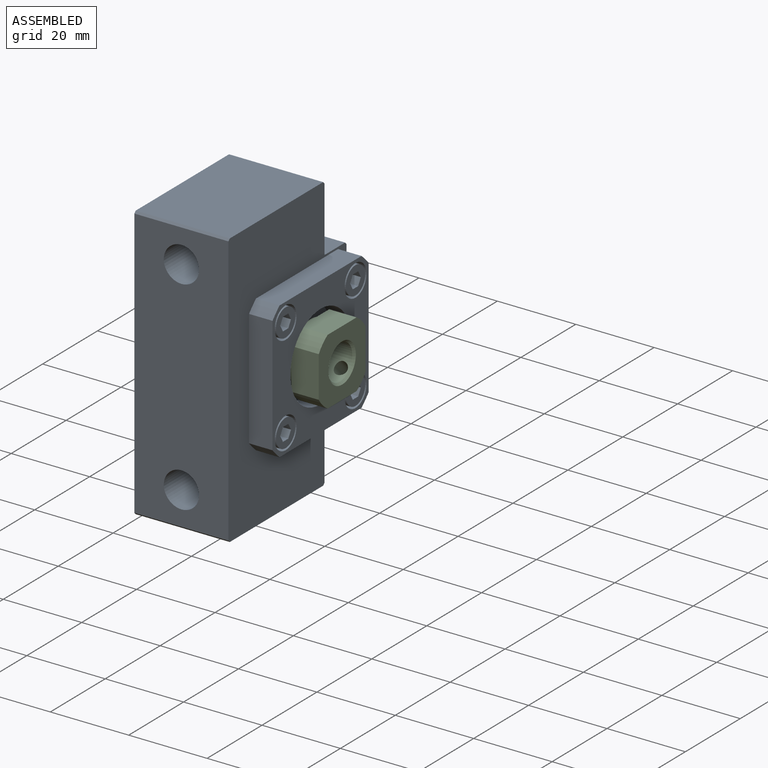
[diagram: assembled view]
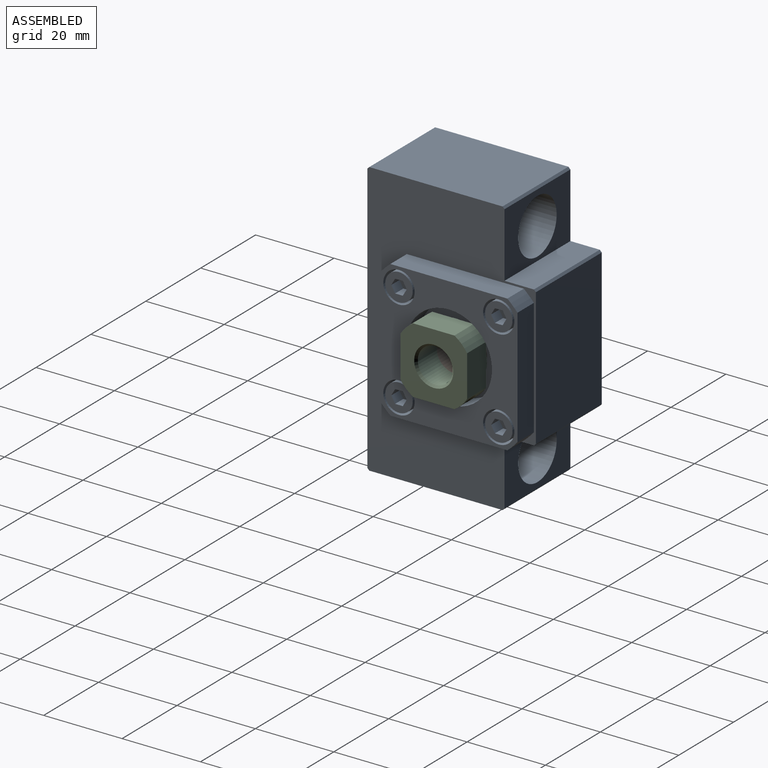
[diagram: assembled view, second angle]
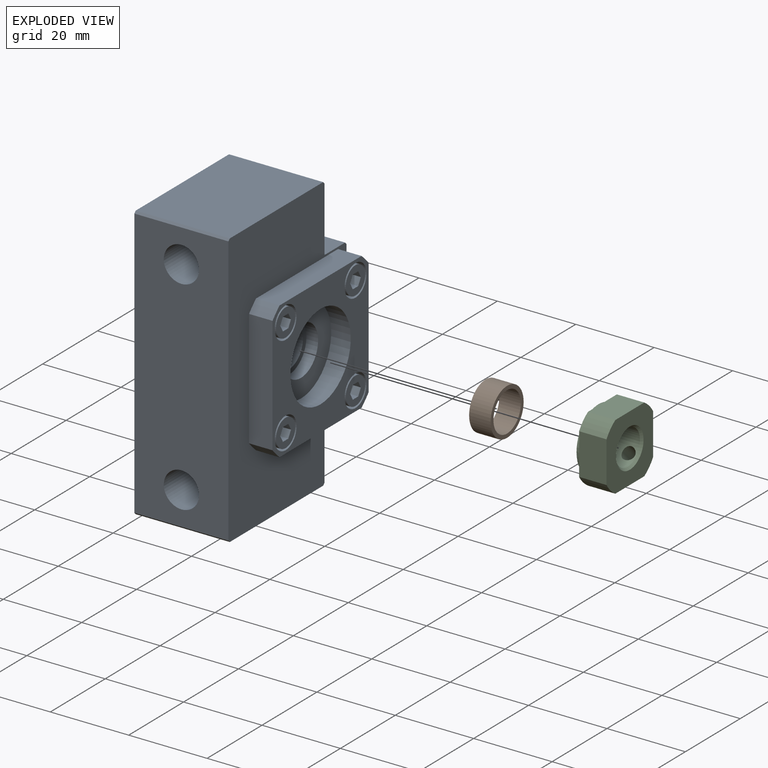
[diagram: exploded view]
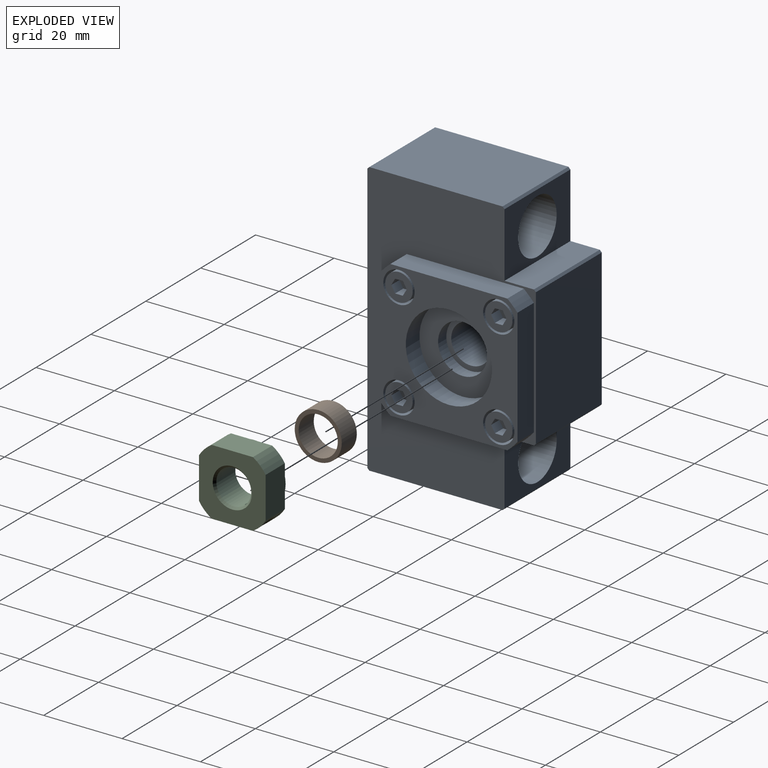
[diagram: exploded view, second angle]
ASSEMBLY  parts=3 mates=2
PART A: 84 faces, bbox 30x43x70 mm
  f0: plane 70x43mm, normal (-1,0,0), area 2390.9mm2, adj f3,f4,f5,f6,f7,f8,f9,f10
  f1: plane 35x35mm, normal (1,0,0), area 631.2mm2, adj f23,f24,f25,f26,f27,f28,f29,f30
  f2: plane 70x43mm, normal (1,0,0), area 1524.8mm2, adj f3,f4,f5,f6,f7,f8,f9,f10
  f3: plane 69x24mm, normal (0,-1,0), area 1528.8mm2, adj f0,f2,f7,f8,f19,f20
  f4: plane 24x16.5mm, normal (0,1,0), area 242.1mm2, adj f0,f2,f15,f16,f22
  f5: plane 24x16.5mm, normal (0,1,0), area 242.1mm2, adj f0,f2,f10,f11,f17
  f6: plane 34x24mm, normal (0,0,1), area 816mm2, adj f0,f2,f7,f16
  f7: plane 24x0.5mm, normal (0,-0.71,0.71), area 17mm2, adj f0,f2,f3,f6
  f8: plane 24x0.5mm, normal (0,-0.71,-0.71), area 17mm2, adj f0,f2,f3,f9
  f9: plane 34x24mm, normal (0,0,-1), area 816mm2, adj f0,f2,f8,f10
  f10: plane 24x0.5mm, normal (0,0.71,-0.71), area 17mm2, adj f0,f2,f5,f9
  f11: plane 24x7.5mm, normal (0,0,-1), area 180mm2, adj f0,f2,f5,f12
  f12: plane 24x0.5mm, normal (0,0.71,-0.71), area 17mm2, adj f0,f2,f11,f13
  f13: plane 35x24mm, normal (0,1,0), area 840mm2, adj f0,f2,f12,f14
  f14: plane 24x0.5mm, normal (0,0.71,0.71), area 17mm2, adj f0,f2,f13,f15
  f15: plane 24x7.5mm, normal (0,0,1), area 180mm2, adj f0,f2,f4,f14
  f16: plane 24x0.5mm, normal (0,0.71,0.71), area 17mm2, adj f0,f2,f4,f6
  f17: cylinder r=7mm len=14mm, axis (0,1,0), area 483.8mm2, adj f5,f18
  f18: plane 14x14mm, normal (0,1,0), area 90.3mm2, adj f17,f19
  f19: cylinder r=4.5mm len=24mm, axis (0,1,0), area 678.6mm2, adj f3,f18
  f20: cylinder r=4.5mm len=24mm, axis (0,-1,0), area 678.6mm2, adj f3,f21
  f21: plane 14x14mm, normal (0,1,0), area 90.3mm2, adj f20,f22
  f22: cylinder r=7mm len=14mm, axis (0,-1,0), area 483.8mm2, adj f4,f21
  f23: cylinder r=23mm len=6mm, axis (-1,0,0), area 21.9mm2, adj f1,f2,f24,f30
  f24: plane 29.85x6mm, normal (0,-1,0), area 179.1mm2, adj f1,f2,f23,f25
  f25: cylinder r=23mm len=6mm, axis (-1,0,0), area 21.9mm2, adj f1,f2,f24,f26
  f26: plane 29.85x6mm, normal (0,0,-1), area 179.1mm2, adj f1,f2,f25,f27
  f27: cylinder r=23mm len=6mm, axis (-1,0,0), area 21.9mm2, adj f1,f2,f26,f28
  f28: plane 29.85x6mm, normal (0,1,0), area 179.1mm2, adj f1,f2,f27,f29
  f29: cylinder r=23mm len=6mm, axis (-1,0,0), area 21.9mm2, adj f1,f2,f28,f30
  f30: plane 29.85x6mm, normal (0,0,1), area 179.1mm2, adj f1,f2,f23,f29
  f31: cylinder r=10.5mm len=21mm, axis (-1,0,0), area 197.9mm2, adj f0,f32
  f32: plane 21x21mm, normal (-1,0,0), area 223.6mm2, adj f31,f33
  f33: cylinder r=6.25mm len=12.5mm, axis (-1,0,0), area 117.8mm2, adj f32,f34
  f34: plane 12.5x12.5mm, normal (-1,0,0), area 44.2mm2, adj f33,f35
  f35: cylinder r=5mm len=16mm, axis (-1,0,0), area 502.7mm2, adj f34,f36
  f36: plane 12.5x12.5mm, normal (1,0,0), area 44.2mm2, adj f35,f37
  f37: cylinder r=6.25mm len=12.5mm, axis (-1,0,0), area 117.8mm2, adj f36,f38
  f38: plane 22x22mm, normal (1,0,0), area 257.4mm2, adj f37,f39
  f39: cylinder r=11mm len=22mm, axis (-1,0,0), area 345.6mm2, adj f1,f38
  f40: cylinder r=4mm len=8mm, axis (1,0,0), area 100.5mm2, adj f1,f41
  f41: plane 8x8mm, normal (1,0,0), area 11.8mm2, adj f40,f42
  f42: cylinder r=3.5mm len=7mm, axis (1,0,0), area 88mm2, adj f41,f43
  f43: plane 7x7mm, normal (1,0,0), area 28.5mm2, adj f42,f56,f57,f58,f59,f60,f61
  f44: cylinder r=4mm len=8mm, axis (1,0,0), area 100.5mm2, adj f1,f45
  f45: plane 8x8mm, normal (1,0,0), area 11.8mm2, adj f44,f46
  f46: cylinder r=3.5mm len=7mm, axis (1,0,0), area 88mm2, adj f45,f47
  f47: plane 7x7mm, normal (1,0,0), area 28.5mm2, adj f46,f63,f64,f65,f66,f67,f68
  f48: cylinder r=4mm len=8mm, axis (1,0,0), area 100.5mm2, adj f1,f49
  f49: plane 8x8mm, normal (1,0,0), area 11.8mm2, adj f48,f50
  f50: cylinder r=3.5mm len=7mm, axis (1,0,0), area 88mm2, adj f49,f51
  f51: plane 7x7mm, normal (1,0,0), area 28.5mm2, adj f50,f70,f71,f72,f73,f74,f75
  f52: cylinder r=4mm len=8mm, axis (1,0,0), area 100.5mm2, adj f1,f53
  f53: plane 8x8mm, normal (1,0,0), area 11.8mm2, adj f52,f54
  f54: cylinder r=3.5mm len=7mm, axis (1,0,0), area 88mm2, adj f53,f55
  f55: plane 7x7mm, normal (1,0,0), area 28.5mm2, adj f54,f77,f78,f79,f80,f81,f82
  f56: plane 3x1.7mm, normal (0,-0.87,-0.5), area 5.9mm2, adj f43,f57,f61,f62
  f57: plane 3x1.7mm, normal (0,-0.87,0.5), area 5.9mm2, adj f43,f56,f58,f62
  f58: plane 3x1.96mm, normal (0,0,1), area 5.9mm2, adj f43,f57,f59,f62
  f59: plane 3x1.7mm, normal (0,0.87,0.5), area 5.9mm2, adj f43,f58,f60,f62
  f60: plane 3x1.7mm, normal (0,0.87,-0.5), area 5.9mm2, adj f43,f59,f61,f62
  f61: plane 3x1.96mm, normal (0,0,-1), area 5.9mm2, adj f43,f56,f60,f62
  f62: plane 3.93x3.4mm, normal (1,0,0), area 10mm2, adj f56,f57,f58,f59,f60,f61
  f63: plane 3x1.7mm, normal (0,-0.87,-0.5), area 5.9mm2, adj f47,f64,f68,f69
  f64: plane 3x1.7mm, normal (0,-0.87,0.5), area 5.9mm2, adj f47,f63,f65,f69
  f65: plane 3x1.96mm, normal (0,0,1), area 5.9mm2, adj f47,f64,f66,f69
  f66: plane 3x1.7mm, normal (0,0.87,0.5), area 5.9mm2, adj f47,f65,f67,f69
  f67: plane 3x1.7mm, normal (0,0.87,-0.5), area 5.9mm2, adj f47,f66,f68,f69
  f68: plane 3x1.96mm, normal (0,0,-1), area 5.9mm2, adj f47,f63,f67,f69
  f69: plane 3.93x3.4mm, normal (1,0,0), area 10mm2, adj f63,f64,f65,f66,f67,f68
  f70: plane 3x1.7mm, normal (0,-0.87,-0.5), area 5.9mm2, adj f51,f71,f75,f76
  f71: plane 3x1.7mm, normal (0,-0.87,0.5), area 5.9mm2, adj f51,f70,f72,f76
  f72: plane 3x1.96mm, normal (0,0,1), area 5.9mm2, adj f51,f71,f73,f76
  f73: plane 3x1.7mm, normal (0,0.87,0.5), area 5.9mm2, adj f51,f72,f74,f76
  f74: plane 3x1.7mm, normal (0,0.87,-0.5), area 5.9mm2, adj f51,f73,f75,f76
  f75: plane 3x1.96mm, normal (0,0,-1), area 5.9mm2, adj f51,f70,f74,f76
  f76: plane 3.93x3.4mm, normal (1,0,0), area 10mm2, adj f70,f71,f72,f73,f74,f75
  f77: plane 3x1.7mm, normal (0,-0.87,-0.5), area 5.9mm2, adj f55,f78,f82,f83
  f78: plane 3x1.7mm, normal (0,-0.87,0.5), area 5.9mm2, adj f55,f77,f79,f83
  f79: plane 3x1.96mm, normal (0,0,1), area 5.9mm2, adj f55,f78,f80,f83
  f80: plane 3x1.7mm, normal (0,0.87,0.5), area 5.9mm2, adj f55,f79,f81,f83
  f81: plane 3x1.7mm, normal (0,0.87,-0.5), area 5.9mm2, adj f55,f80,f82,f83
  f82: plane 3x1.96mm, normal (0,0,-1), area 5.9mm2, adj f55,f77,f81,f83
  f83: plane 3.93x3.4mm, normal (1,0,0), area 10mm2, adj f77,f78,f79,f80,f81,f82
PART B: 4 faces, bbox 12x12x5.5 mm
  f0: plane 12x12mm, normal (0,0,1), area 34.6mm2, adj f1,f3
  f1: cylinder r=5mm len=10mm, axis (0,0,1), area 172.8mm2, adj f0,f2
  f2: plane 12x12mm, normal (0,0,-1), area 34.6mm2, adj f1,f3
  f3: cylinder r=6mm len=12mm, axis (0,0,1), area 207.3mm2, adj f0,f2
PART C: 17 faces, bbox 8x17x17 mm
  f0: cylinder r=10mm len=7mm, axis (-1,0,0), area 20.7mm2, adj f2,f4,f8,f9,f15
  f1: cylinder r=4.46mm len=8.92mm, axis (-1,0,0), area 185.3mm2, adj f13,f14,f16
  f2: plane 17x17mm, normal (1,0,0), area 192.8mm2, adj f0,f5,f6,f7,f8,f9,f10,f11
  f3: plane 16x16mm, normal (-1,0,0), area 122.5mm2, adj f12,f13
  f4: plane 17x17mm, normal (-1,0,0), area 70.3mm2, adj f0,f5,f6,f7,f8,f9,f10,f11
  f5: cylinder r=10mm len=7mm, axis (-1,0,0), area 32.3mm2, adj f2,f4,f6,f11
  f6: plane 10.54x7mm, normal (0,-1,0), area 73.7mm2, adj f2,f4,f5,f7
  f7: cylinder r=10mm len=7mm, axis (-1,0,0), area 32.3mm2, adj f2,f4,f6,f8
  f8: plane 10.54x7mm, normal (0,0,-1), area 73.7mm2, adj f0,f2,f4,f7
  f9: plane 10.54x7mm, normal (0,1,0), area 73.7mm2, adj f0,f2,f4,f10
  f10: cylinder r=10mm len=7mm, axis (-1,0,0), area 32.3mm2, adj f2,f4,f9,f11
  f11: plane 10.54x7mm, normal (0,0,1), area 73.7mm2, adj f2,f4,f5,f10
  f12: cylinder r=8mm len=16mm, axis (-1,0,0), area 50.3mm2, adj f3,f4
  f13: cone r=4.46mm half-angle=45deg, axis (-1,0,0), area 22.8mm2, adj f1,f3
  f14: cone r=5mm half-angle=45deg, axis (1,0,0), area 22.8mm2, adj f1,f2
  f15: cone r=1.62mm half-angle=45deg, axis (0,0.71,-0.71), area 4.6mm2, adj f0,f16
  f16: cylinder r=1.62mm len=6.16mm, axis (0,0.71,-0.71), area 54.1mm2, adj f1,f15
PLACE A t=(32.19,-52.52,-11.09)mm
PLACE B rot(axis=(0.71,0,-0.71),180deg) t=(42.19,-27.52,-11.09)mm
PLACE C t=(48.69,-27.52,-11.09)mm
MATE revolute B.f1 <-> C.f1  axis (1,0,0) through (47.69,-27.52,-11.09)mm
MATE revolute B.f1 <-> A.f31  axis (-1,0,0) through (42.19,-27.52,-11.09)mm
